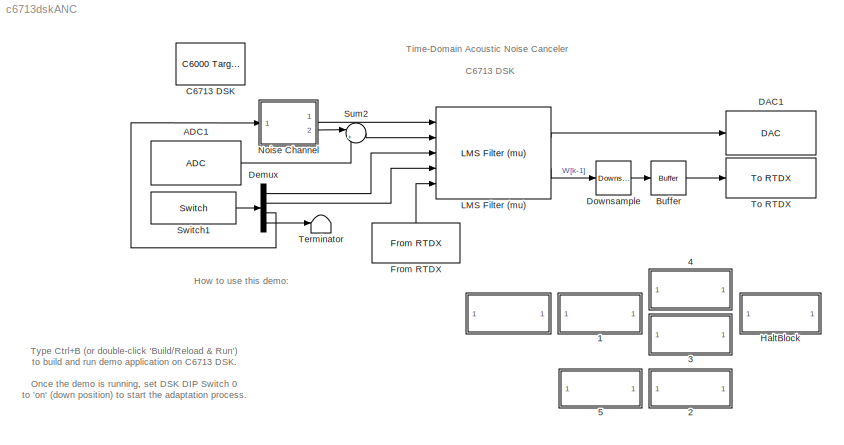
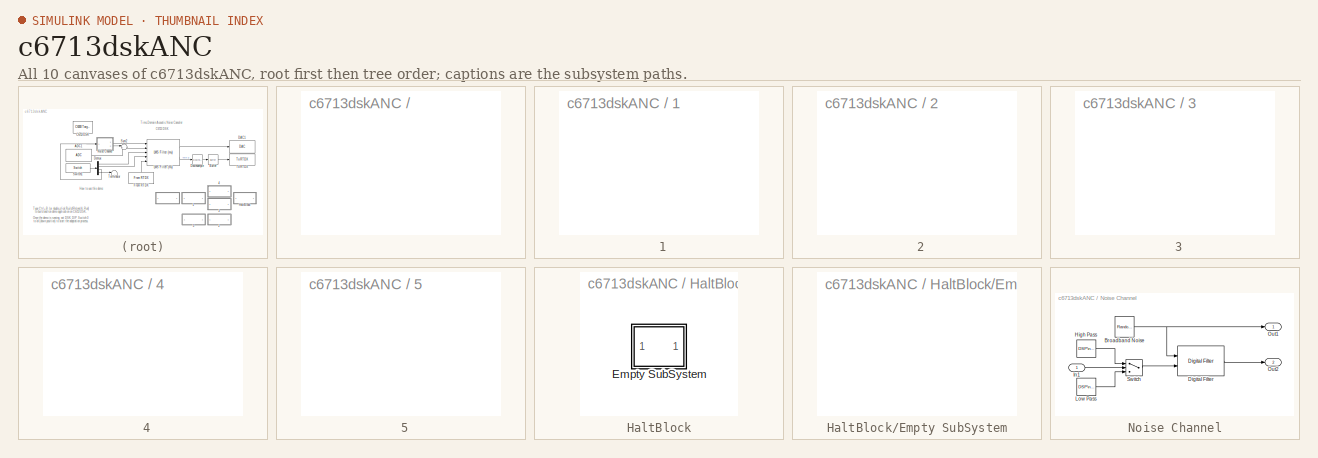
[diagram: thumbnail index - all 10 canvases of the model, root first then tree order]
MODEL c6713dskANC
KIND model
BLOCK [SubSystem]  
  MaskDisplay = disp(sprintf('Build / Reload\\n& Run'))
  MaskIconFrame = on
  MaskIconOpaque = on
  MaskIconRotate = none
  MaskIconUnits = autoscale
  MaskType = Run demo
  MinAlgLoopOccurrences = off
  OpenFcn = ANC_script('run')
  Ports = []
  ShowPortLabels = off
  TreatAsAtomicUnit = off
BLOCK [SubSystem]  1
  MaskDisplay = disp(sprintf('Display\\n RTDX Data'))
  MaskIconFrame = on
  MaskIconOpaque = on
  MaskIconRotate = none
  MaskIconUnits = autoscale
  MaskType = Run demo
  MinAlgLoopOccurrences = off
  OpenFcn = ANC_script('RTDX')
  Ports = []
  ShowPortLabels = off
  TreatAsAtomicUnit = off
BLOCK [SubSystem]  2
  MaskDescription = Double-clicking this button will display the demo script which generates code, builds, loads, executes application on the DSP, and arbitrates RTDX transfers.
  MaskDisplay = disp(sprintf('View Demo \\nScript'))
  MaskIconFrame = on
  MaskIconOpaque = on
  MaskIconRotate = none
  MaskIconUnits = autoscale
  MaskType = Run demo
  MinAlgLoopOccurrences = off
  OpenFcn = edit ANC_script
  Ports = []
  ShowPortLabels = off
  TreatAsAtomicUnit = off
BLOCK [SubSystem]  3
  MaskDisplay = disp('Slow\\nAdapt')
  MaskIconFrame = on
  MaskIconOpaque = on
  MaskIconRotate = none
  MaskIconUnits = autoscale
  MinAlgLoopOccurrences = off
  OpenFcn = ANC_script('change_mu',0.001);
  Ports = []
  ShowPortLabels = off
  TreatAsAtomicUnit = off
BLOCK [SubSystem]  4
  MaskDisplay = disp('Fast\\nAdapt')\n
  MaskIconFrame = on
  MaskIconOpaque = on
  MaskIconRotate = none
  MaskIconUnits = autoscale
  MinAlgLoopOccurrences = off
  OpenFcn = ANC_script('change_mu',0.04);
  Ports = []
  ShowPortLabels = off
  TreatAsAtomicUnit = off
BLOCK [SubSystem]  5
  MaskDescription = Double-clicking this button will display the demo script which generates code, builds, loads, executes application on the DSP, and arbitrates RTDX transfers.
  MaskDisplay = disp('Info')
  MaskIconFrame = on
  MaskIconOpaque = on
  MaskIconRotate = none
  MaskIconUnits = autoscale
  MaskType = Run demo
  MinAlgLoopOccurrences = off
  OpenFcn = web(fullfile(matlabroot,'toolbox','rtw','targets','tic6000','tic6000demos','html','ANC_doc.html'))
  Ports = []
  ShowPortLabels = off
  TreatAsAtomicUnit = off
BLOCK [Reference] ADC1  REF=c6713dsklib/ADC
  ADCsource = Line In
  CodecDataFormat = 16-bit
  FrameSize = 256
  MicGain = off
  OutputDataType = Single
  Ports = [0, 1]
  SampleRate = 8 kHz
  Scaling = Normalize
  SourceBlock = c6713dsklib/ADC
  SourceGain = 0.0
  SourceType = C6713DSK ADC
  Stereo = off
BLOCK [Reference] Buffer  REF=dspbuff3/Buffer
  N = 8
  Ports = [1, 1]
  SourceBlock = dspbuff3/Buffer
  SourceType = Buffer
  V = 0
  ic = 0
BLOCK [Reference] C6713 DSK  REF=c6000tgtpreflib/C6000 Target\nPreferences
  Ports = []
  ShowPortLabels = on
  SourceBlock = c6000tgtpreflib/C6000 Target\nPreferences
  SourceType = C6000 Target Preferences
  UserData = DataTag0
  UserDataPersistent = on
BLOCK [Reference] DAC1  REF=c6713dsklib/DAC
  CodecDataFormat = 16-bit
  DacAtten = 0.0
  OverflowMode = Wrap
  Ports = [1]
  Scaling = Normalize
  SourceBlock = c6713dsklib/DAC
  SourceType = C6713DSK DAC
BLOCK [Demux] Demux
  DisplayOption = bar
  Ports = [1, 4]
BLOCK [Reference] Downsample  REF=dspsigops/Downsample
  N = 4
  Ports = [1, 1]
  SourceBlock = dspsigops/Downsample
  SourceType = Downsample
  fmode = Maintain input frame size
  ic = 0
  phase = 0
  smode = Allow multirate
BLOCK [Reference] From RTDX  REF=rtdxBlocks/From RTDX
  Ports = [0, 1]
  SourceBlock = rtdxBlocks/From RTDX
  SourceType = From RTDX
  Ts = 256/8000
  channelNameStr = iMu
  dType = single
  dims = [1 1]
  icMaskVar = 0.001
  isBlocking = off
  isChannelEnabled = off
  isFrame = off
  isHighSpeedRTDXUsed = off
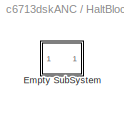
BLOCK [SubSystem] HaltBlock
  AncestorBlock = c6711dsklib/Reset
  MaskDisplay = disp('Halt Demo');
  MaskIconFrame = on
  MaskIconOpaque = on
  MaskIconRotate = none
  MaskIconUnits = normalized
  MinAlgLoopOccurrences = off
  OpenFcn = ANC_script('halt')
  Ports = []
  TreatAsAtomicUnit = off
BLOCK [SubSystem] HaltBlock/Empty SubSystem
  MinAlgLoopOccurrences = off
  Ports = []
  TreatAsAtomicUnit = off
BLOCK [Reference] LMS Filter (mu)  REF=adapt_frame/LMS Filter (mu)  (lib defined in mdl_ffe68553ca12)
  N = 32
  Ports = [5, 2]
  ShowPortLabels = on
  SourceBlock = adapt_frame/LMS Filter (mu)
  SourceType = LMS Adaptive Filter
  leakage = 1.0
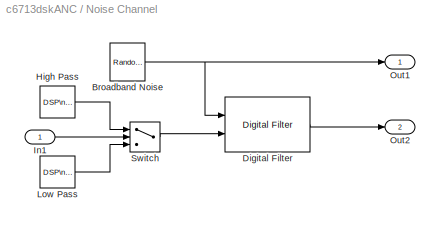
BLOCK [SubSystem] Noise Channel
  MinAlgLoopOccurrences = off
  Ports = [1, 2]
  TreatAsAtomicUnit = off
BLOCK [Reference] Noise Channel/Broadband Noise  REF=dspsrcs4/Random\nSource
  CltLength = 5
  DataType = Single
  Diagnostics = AllowInheritedTsInSrc
  Inherit = off
  Max = 1
  Mean = 0
  Min = 0
  NormMethod = Sum of uniform values
  OutComplex = Real
  Ports = [0, 1]
  RepMode = Specify seed
  SampFrame = 256
  SampMode = Discrete
  SampTime = 1/8000
  Seed = [23341]
  SourceBlock = dspsrcs4/Random\nSource
  SourceType = Random Source
  SrcType = Gaussian
  Var = 0.2
BLOCK [Reference] Noise Channel/Digital Filter  REF=dsparch4/Digital Filter
  AllPoleFiltStruct = Direct form
  BiQuadCoeffs = [1 0.3 0.4 1 0.1 0.2]
  CoeffSource = Input port(s)
  DenCoeffs = [1 0.1]
  FIRFiltStruct = Direct form
  FiltPerSampPopup = One filter per frame
  IC = 0
  ICden = 0
  ICnum = 0
  IIRFiltStruct = Direct form II transposed
  LatticeCoeffs = [0.2 0.4]
  NumCoeffs = [1 2]
  Ports = [2, 1]
  SourceBlock = dsparch4/Digital Filter
  SourceType = Digital Filter
  TypePopup = FIR (all zeros)
  accumFracLength = 30
  accumMode = Same as output
  accumWordLength = 40
  additionalParams = off
  allowOverrides = on
  denIgnore = on
  firstCoeffFracLength = 15
  firstCoeffMode = Same as input
  firstCoeffWordLength = 16
  memoryFracLength = 14
  memoryMode = Same as input
  memoryWordLength = 16
  outputFracLength = 15
  outputMode = Same as input
  outputWordLength = 16
  overflowMode = off
  prodOutputFracLength = 30
  prodOutputMode = Same as output
  prodOutputWordLength = 32
  roundingMode = Floor
  secondCoeffFracLength = 15
  secondCoeffMode = Same as numerator
  secondCoeffWordLength = 16
  showAcc = off
  showCoeff = off
  showMem = off
  showMpy = off
  showOut = off
  thirdCoeffFracLength = 15
  thirdCoeffMode = Same as input
  thirdCoeffWordLength = 16
BLOCK [Reference] Noise Channel/High Pass  REF=dspsrcs4/DSP\nConstant
  FramebasedOutput = -inf
  InterpretAs1D = -inf
  Ports = [0, 1]
  SampleMode = Discrete
  SourceBlock = dspsrcs4/DSP\nConstant
  SourceType = DSP Constant
  Ts = -inf
  Value = single([0.00493427189488606 -0.00596085391438248 -0.0100028665950744 0.000247624247658316 0.0136346086248442 0.00499735400511394 -0.0189539275340475 -0.0168748387438599 0.0203757595600775 0.035365951918637 -0.0143987965290339 -0.0640193820794684 -0.00860427731620416 0.118290255249928 0.0991576384227279 -0.491423287322378 0.491423287322378 -0.0991576384227279 -0.118290255249928 0.00860427731620416 ...<+239ch>
  additionalParams = off
  allowOverrides = on
  continuousOutput = Sample-based
  dataType = Inherit from 'Constant value'
  discreteOutput = Sample-based
  fracBitsMode = Best precision
  framePeriod = 2
  numFracBits = 15
  sampTime = 256/8000
  udDataType = sfix(16)
  wordLen = 16
BLOCK [Inport] Noise Channel/In1
  IconDisplay = Port number
BLOCK [Reference] Noise Channel/Low Pass  REF=dspsrcs4/DSP\nConstant
  FramebasedOutput = -inf
  InterpretAs1D = -inf
  Ports = [0, 1]
  SampleMode = Discrete
  SourceBlock = dspsrcs4/DSP\nConstant
  SourceType = DSP Constant
  Ts = -inf
  Value = single([0.00134550092740892 0.000523816682121889 0.00420303599278532 0.00632655262041013 -0.0143222876697505 -0.0389824015898802 -0.0103937897059368 0.0478667359432575 0.0407952413345009 -0.00403845698847935 0.0264625284266877 0.0517683541033748 -0.0922904697037772 -0.235175831919441 -0.0585231709321379 0.273497649258539 0.273497649258539 -0.0585231709321379 -0.235175831919441 -0.0922904697037772 ...<+239ch>
  additionalParams = off
  allowOverrides = on
  continuousOutput = Sample-based
  dataType = Inherit from 'Constant value'
  discreteOutput = Sample-based
  fracBitsMode = Best precision
  framePeriod = 2
  numFracBits = 15
  sampTime = 256/8000
  udDataType = sfix(16)
  wordLen = 16
BLOCK [Outport] Noise Channel/Out1
  BusOutputAsStruct = off
  IconDisplay = Port number
BLOCK [Outport] Noise Channel/Out2
  BusOutputAsStruct = off
  IconDisplay = Port number
  Port = 2
BLOCK [Switch] Noise Channel/Switch
  InputSameDT = off
BLOCK [Sum] Sum2
  IconShape = round
  Inputs = |++
  Ports = [2, 1]
BLOCK [Reference] Switch1  REF=c6713dsklib/Switch
  Ports = [0, 1]
  SourceBlock = c6713dsklib/Switch
  SourceType = C6713 DSK DIP Switch
  Ts = 256/8000
  dType = Boolean
  sw0 = off
  sw1 = on
  sw2 = off
  sw3 = off
BLOCK [Terminator] Terminator
BLOCK [Reference] To RTDX  REF=rtdxBlocks/To RTDX
  Ports = [1]
  SourceBlock = rtdxBlocks/To RTDX
  SourceType = To RTDX
  channelNameStr = outTaps
  isChannelEnabled = off
ANNOTATION (root): C6713 DSK
ANNOTATION (root): How to use this demo:
ANNOTATION (root): Time-Domain Acoustic Noise Canceler
ANNOTATION (root): Type Ctrl+B (or double-click 'Build/Reload & Run')\nto build and run demo application on C6713 DSK. \n\nOnce the demo is running, set DSK DIP Switch 0 \nto 'on' (down position) to start the adaptation process. \n\nBe sure to use the 'Halt' button to stop the demo, in order\nto properly disable RTDX.
LINE ADC1:1 -> Sum2:2
LINE Buffer:1 -> To RTDX:1
LINE Demux:1 -> LMS Filter (mu):3
LINE Demux:2 -> LMS Filter (mu):4
LINE Demux:3 -> Noise Channel:1
LINE Demux:4 -> Terminator:1
LINE Downsample:1 -> Buffer:1
LINE From RTDX:1 -> LMS Filter (mu):5
LINE LMS Filter (mu):1 -> DAC1:1
LINE LMS Filter (mu):2 -> Downsample:1
NET Noise Channel/Broadband Noise:1 -> Noise Channel/Digital Filter:1, Noise Channel/Out1:1
LINE Noise Channel/Digital Filter:1 -> Noise Channel/Out2:1
LINE Noise Channel/High Pass:1 -> Noise Channel/Switch:1
LINE Noise Channel/In1:1 -> Noise Channel/Switch:2
LINE Noise Channel/Low Pass:1 -> Noise Channel/Switch:3
LINE Noise Channel/Switch:1 -> Noise Channel/Digital Filter:2
LINE Noise Channel:1 -> LMS Filter (mu):1
LINE Noise Channel:2 -> Sum2:1
LINE Sum2:1 -> LMS Filter (mu):2
LINE Switch1:1 -> Demux:1
note: NET lines group one-source signal fan-out (src -> all destinations, sorted); 1:1 wires keep LINE
